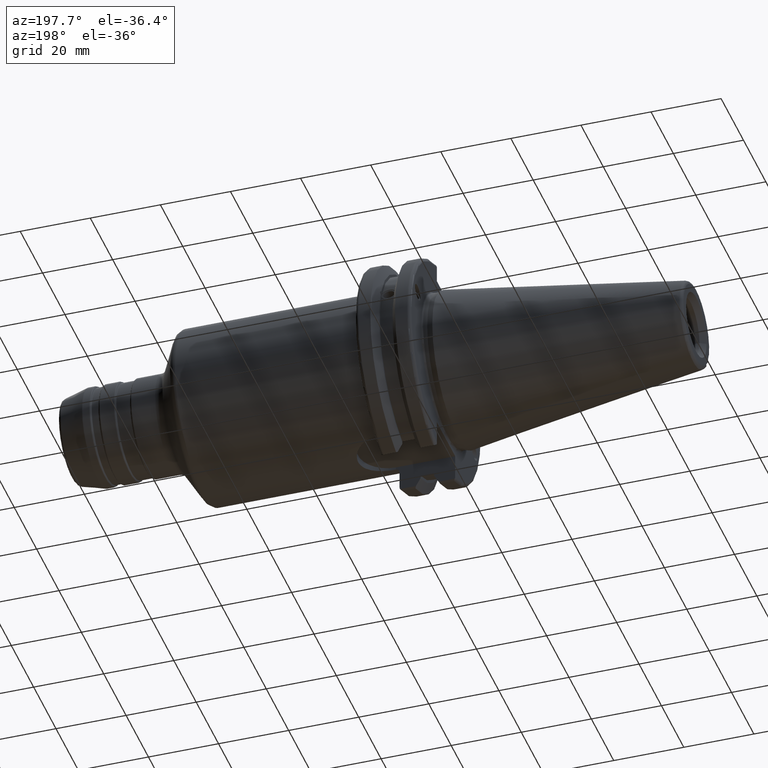
[diagram: clean part render]
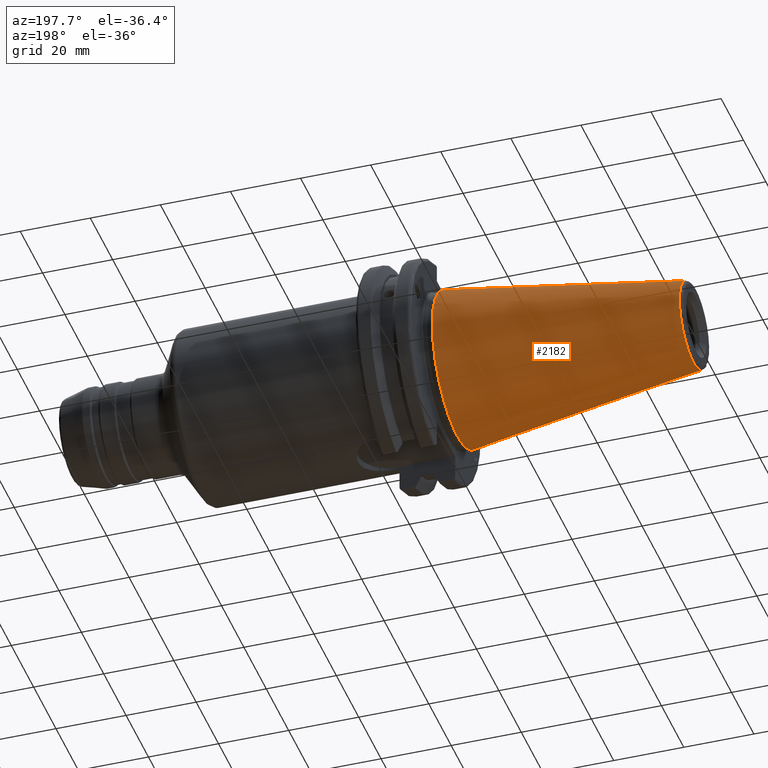
[diagram: same view with one face highlighted and labeled with its STEP entity id]
A machine part, auxiliary view. The second image highlights one B-rep face of the part: STEP entity #2182.
In plain terms, the highlighted conical surface has half-angle 8.297 deg.
Its self-contained STEP definition (entity closure, byte-faithful):
#164=CONICAL_SURFACE('',#2493,17.2484375,0.144812498238939);
#253=FACE_OUTER_BOUND('',#374,.T.);
#374=EDGE_LOOP('',(#1930,#1931,#1932,#1933,#1934,#1935,#1936));
#485=LINE('',#4229,#581);
#581=VECTOR('',#3160,17.2484375);
#750=CIRCLE('',#2484,12.3966635780937);
#751=CIRCLE('',#2485,12.3966635780937);
#755=CIRCLE('',#2489,12.3966635780937);
#758=CIRCLE('',#2494,22.225);
#759=CIRCLE('',#2495,22.225);
#1001=VERTEX_POINT('',#4208);
#1002=VERTEX_POINT('',#4209);
#1003=VERTEX_POINT('',#4211);
#1008=VERTEX_POINT('',#4225);
#1009=VERTEX_POINT('',#4226);
#1328=EDGE_CURVE('',#1001,#1002,#750,.T.);
#1329=EDGE_CURVE('',#1002,#1003,#751,.T.);
#1333=EDGE_CURVE('',#1003,#1001,#755,.T.);
#1336=EDGE_CURVE('',#1008,#1009,#758,.T.);
#1337=EDGE_CURVE('',#1009,#1008,#759,.T.);
#1338=EDGE_CURVE('',#1009,#1002,#485,.T.);
#1930=ORIENTED_EDGE('',*,*,#1336,.F.);
#1931=ORIENTED_EDGE('',*,*,#1337,.F.);
#1932=ORIENTED_EDGE('',*,*,#1338,.T.);
#1933=ORIENTED_EDGE('',*,*,#1328,.F.);
#1934=ORIENTED_EDGE('',*,*,#1333,.F.);
#1935=ORIENTED_EDGE('',*,*,#1329,.F.);
#1936=ORIENTED_EDGE('',*,*,#1338,.F.);
#2182=ADVANCED_FACE('',(#253),#164,.T.);
#2484=AXIS2_PLACEMENT_3D('',#4210,#3136,#3137);
#2485=AXIS2_PLACEMENT_3D('',#4212,#3138,#3139);
#2489=AXIS2_PLACEMENT_3D('',#4218,#3146,#3147);
#2493=AXIS2_PLACEMENT_3D('',#4224,#3154,#3155);
#2494=AXIS2_PLACEMENT_3D('',#4227,#3156,#3157);
#2495=AXIS2_PLACEMENT_3D('',#4228,#3158,#3159);
#3136=DIRECTION('center_axis',(-1.,0.,0.));
#3137=DIRECTION('ref_axis',(0.,-1.,3.06161699786838E-17));
#3138=DIRECTION('center_axis',(-1.,0.,0.));
#3139=DIRECTION('ref_axis',(0.,-1.,3.06161699786838E-17));
#3146=DIRECTION('center_axis',(-1.,0.,0.));
#3147=DIRECTION('ref_axis',(0.,-1.,3.06161699786838E-17));
#3154=DIRECTION('center_axis',(1.,0.,0.));
#3155=DIRECTION('ref_axis',(0.,1.,0.));
#3156=DIRECTION('center_axis',(1.,0.,0.));
#3157=DIRECTION('ref_axis',(0.,0.,-1.));
#3158=DIRECTION('center_axis',(1.,0.,0.));
#3159=DIRECTION('ref_axis',(0.,0.,-1.));
#3160=DIRECTION('',(-0.989532981063282,0.144306893071729,1.76724974695192E-17));
#4208=CARTESIAN_POINT('',(-67.3943068930717,12.3966635780937,-3.79538359275475E-15));
#4209=CARTESIAN_POINT('',(-67.3943068930718,-12.3966635780937,-1.5181534371019E-15));
#4210=CARTESIAN_POINT('Origin',(-67.3943068930717,0.,-1.89769179637738E-15));
#4211=CARTESIAN_POINT('',(-67.3943068930717,-1.5181534371019E-15,12.3966635780937));
#4212=CARTESIAN_POINT('Origin',(-67.3943068930717,0.,-1.89769179637738E-15));
#4218=CARTESIAN_POINT('Origin',(-67.3943068930717,0.,-1.89769179637738E-15));
#4224=CARTESIAN_POINT('Origin',(-34.125,0.,0.));
#4225=CARTESIAN_POINT('',(0.,22.225,0.));
#4226=CARTESIAN_POINT('',(0.,-22.225,-2.72177751110499E-15));
#4227=CARTESIAN_POINT('Origin',(0.,0.,0.));
#4228=CARTESIAN_POINT('Origin',(0.,0.,0.));
#4229=CARTESIAN_POINT('',(-34.125,-17.2484375,-2.11232437746682E-15));